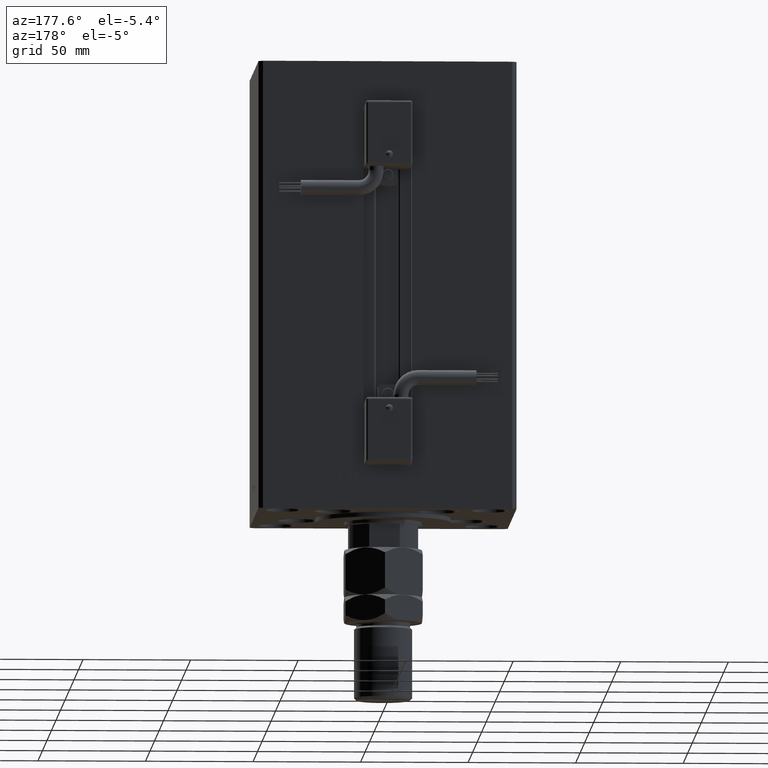
[diagram: clean part render]
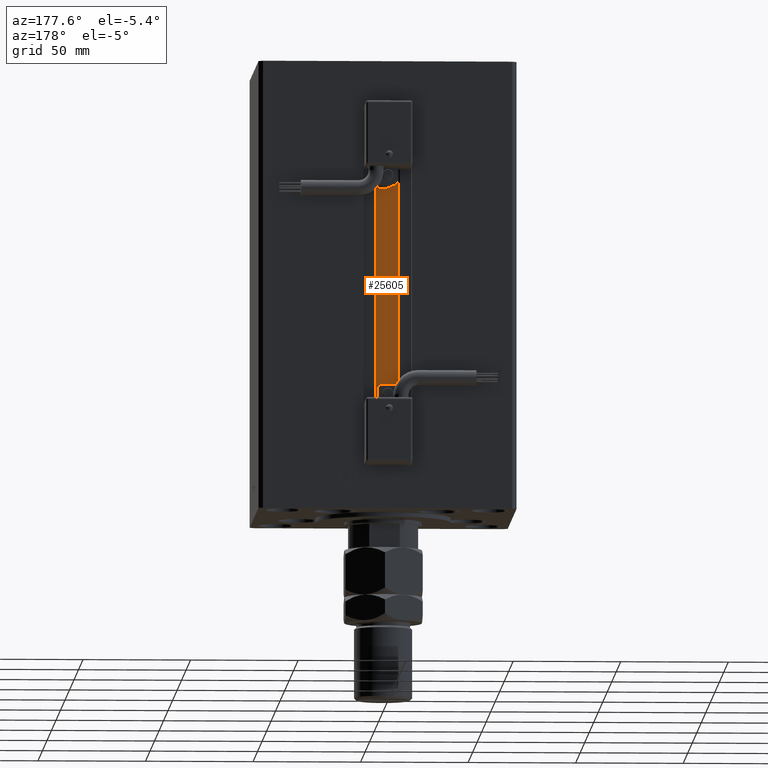
[diagram: same view with one face highlighted and labeled with its STEP entity id]
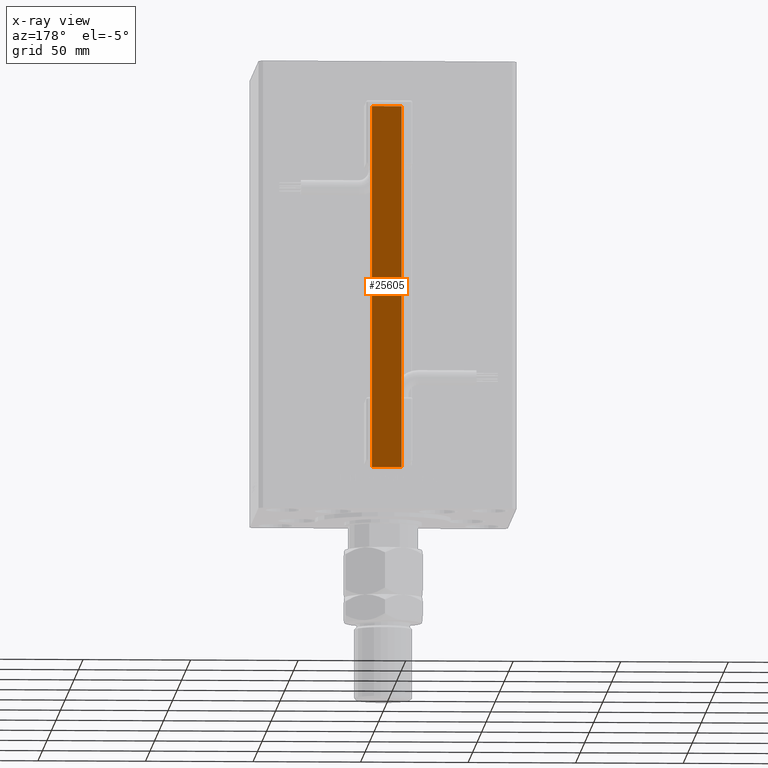
[diagram: x-ray of the same camera — body ghosted, the highlighted face saturated]
A machine part, auxiliary view. The second image highlights one B-rep face of the part: STEP entity #25605.
The next image is the same camera in x-ray: the body ghosted, the highlighted face saturated — about 0% of this face is hidden behind the body in this view.
In plain terms, the highlighted planar face has unit normal (0, -1, 0).
Its self-contained STEP definition (entity closure, byte-faithful):
#1938 = VECTOR ( 'NONE', #6861, 1000.000000000000000 ) ;
#2118 = EDGE_CURVE ( 'NONE', #4779, #31492, #2362, .T. ) ;
#2362 = LINE ( 'NONE', #10810, #8699 ) ;
#4779 = VERTEX_POINT ( 'NONE', #41725 ) ;
#5266 = CARTESIAN_POINT ( 'NONE',  ( 6.876153656360466826, 40.49999999999987210, 168.5000000000000000 ) ) ;
#6861 = DIRECTION ( 'NONE',  ( -0.000000000000000000, -0.000000000000000000, 1.000000000000000000 ) ) ;
#8699 = VECTOR ( 'NONE', #27681, 1000.000000000000000 ) ;
#10408 = EDGE_CURVE ( 'NONE', #23106, #33057, #36235, .T. ) ;
#10810 = CARTESIAN_POINT ( 'NONE',  ( 6.876153656360466826, 40.49999999999987210, 0.000000000000000000 ) ) ;
#11325 = PLANE ( 'NONE',  #28337 ) ;
#12962 = ORIENTED_EDGE ( 'NONE', *, *, #21975, .F. ) ;
#14878 = CARTESIAN_POINT ( 'NONE',  ( -6.876153656360466826, 40.49999999999987210, 0.000000000000000000 ) ) ;
#20337 = LINE ( 'NONE', #53775, #30934 ) ;
#21975 = EDGE_CURVE ( 'NONE', #31492, #33057, #52124, .T. ) ;
#22865 = ORIENTED_EDGE ( 'NONE', *, *, #26492, .F. ) ;
#23019 = CARTESIAN_POINT ( 'NONE',  ( 6.876153656360466826, 40.49999999999987210, 0.000000000000000000 ) ) ;
#23106 = VERTEX_POINT ( 'NONE', #14878 ) ;
#25429 = DIRECTION ( 'NONE',  ( 0.000000000000000000, 0.000000000000000000, -1.000000000000000000 ) ) ;
#25605 = ADVANCED_FACE ( 'NONE', ( #32003 ), #11325, .F. ) ;
#26425 = VECTOR ( 'NONE', #44511, 1000.000000000000000 ) ;
#26492 = EDGE_CURVE ( 'NONE', #23106, #4779, #20337, .T. ) ;
#27681 = DIRECTION ( 'NONE',  ( -0.000000000000000000, -0.000000000000000000, 1.000000000000000000 ) ) ;
#27929 = DIRECTION ( 'NONE',  ( 0.000000000000000000, -1.000000000000000000, -0.000000000000000000 ) ) ;
#28337 = AXIS2_PLACEMENT_3D ( 'NONE', #23019, #27929, #25429 ) ;
#30934 = VECTOR ( 'NONE', #41009, 1000.000000000000000 ) ;
#31093 = ORIENTED_EDGE ( 'NONE', *, *, #10408, .T. ) ;
#31358 = CARTESIAN_POINT ( 'NONE',  ( -6.876153656360466826, 40.49999999999987210, 0.000000000000000000 ) ) ;
#31492 = VERTEX_POINT ( 'NONE', #5266 ) ;
#32003 = FACE_OUTER_BOUND ( 'NONE', #32133, .T. ) ;
#32133 = EDGE_LOOP ( 'NONE', ( #53807, #22865, #31093, #12962 ) ) ;
#33057 = VERTEX_POINT ( 'NONE', #51042 ) ;
#35811 = CARTESIAN_POINT ( 'NONE',  ( 0.000000000000000000, 40.49999999999987210, 168.5000000000000000 ) ) ;
#36235 = LINE ( 'NONE', #31358, #1938 ) ;
#41009 = DIRECTION ( 'NONE',  ( 1.000000000000000000, -0.000000000000000000, -0.000000000000000000 ) ) ;
#41725 = CARTESIAN_POINT ( 'NONE',  ( 6.876153656360466826, 40.49999999999987210, 0.000000000000000000 ) ) ;
#44511 = DIRECTION ( 'NONE',  ( -1.000000000000000000, 0.000000000000000000, 0.000000000000000000 ) ) ;
#51042 = CARTESIAN_POINT ( 'NONE',  ( -6.876153656360466826, 40.49999999999987210, 168.5000000000000000 ) ) ;
#52124 = LINE ( 'NONE', #35811, #26425 ) ;
#53775 = CARTESIAN_POINT ( 'NONE',  ( 6.876153656360466826, 40.49999999999987210, 0.000000000000000000 ) ) ;
#53807 = ORIENTED_EDGE ( 'NONE', *, *, #2118, .F. ) ;